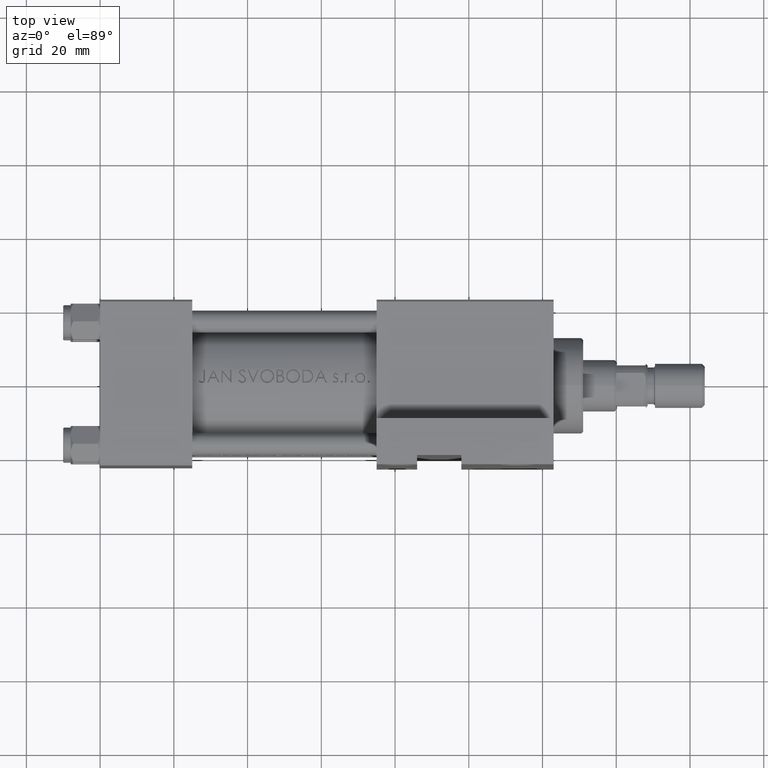
[diagram: clean part render]
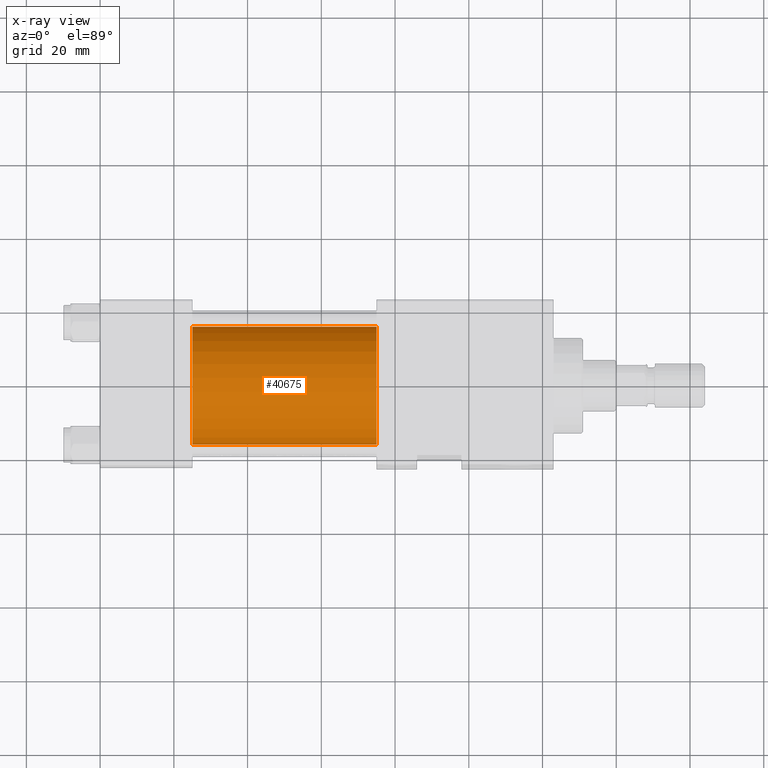
[diagram: x-ray — body ghosted, one internal face saturated and labeled with its STEP entity id]
A machine part, top view, then the same camera in x-ray: the body is ghosted and one INTERNAL B-rep face — a face not visible from any outside direction — is saturated and labeled: STEP entity #40675.
In plain terms, the highlighted cylindrical surface (partial cylindrical patch) has radius 16 mm, axis along (-1, -0, 0).
Its self-contained STEP definition (entity closure, byte-faithful):
#438 = DIRECTION ( 'NONE',  ( -1.000000000000000000, -0.000000000000000000, -0.000000000000000000 ) ) ;
#1616 = CIRCLE ( 'NONE', #7062, 16.00000000000000000 ) ;
#2234 = CARTESIAN_POINT ( 'NONE',  ( 75.00000000000001421, 2.020667218593132311E-15, -16.49999999999999645 ) ) ;
#2476 = LINE ( 'NONE', #2234, #41944 ) ;
#5056 = DIRECTION ( 'NONE',  ( 1.000000000000000000, 0.000000000000000000, 0.000000000000000000 ) ) ;
#6210 = ORIENTED_EDGE ( 'NONE', *, *, #30236, .F. ) ;
#6371 = DIRECTION ( 'NONE',  ( -1.000000000000000000, -0.000000000000000000, -0.000000000000000000 ) ) ;
#7062 = AXIS2_PLACEMENT_3D ( 'NONE', #34774, #5056, #35012 ) ;
#8647 = CARTESIAN_POINT ( 'NONE',  ( 25.00000000000000000, 6.123233995736727825E-17, 15.50000000000000355 ) ) ;
#9645 = EDGE_LOOP ( 'NONE', ( #46060, #39604, #39131, #6210 ) ) ;
#11266 = DIRECTION ( 'NONE',  ( -1.000000000000000000, -0.000000000000000000, -0.000000000000000000 ) ) ;
#12733 = CARTESIAN_POINT ( 'NONE',  ( 75.00000000000001421, 2.020667218593132311E-15, -16.49999999999999645 ) ) ;
#12747 = VECTOR ( 'NONE', #11266, 1000.000000000000000 ) ;
#12957 = CARTESIAN_POINT ( 'NONE',  ( 25.00000000000000000, 6.123233995736727825E-17, -0.4999999999999970024 ) ) ;
#15148 = EDGE_CURVE ( 'NONE', #33177, #32072, #2476, .T. ) ;
#15170 = EDGE_CURVE ( 'NONE', #32003, #32072, #40414, .T. ) ;
#15592 = VERTEX_POINT ( 'NONE', #27664 ) ;
#17326 = DIRECTION ( 'NONE',  ( 1.000000000000000000, 0.000000000000000000, 0.000000000000000000 ) ) ;
#17817 = AXIS2_PLACEMENT_3D ( 'NONE', #12957, #17326, #42687 ) ;
#18710 = EDGE_CURVE ( 'NONE', #15592, #33177, #1616, .T. ) ;
#20145 = CARTESIAN_POINT ( 'NONE',  ( 75.00000000000001421, 6.123233995736727825E-17, -0.4999999999999970024 ) ) ;
#21750 = LINE ( 'NONE', #22238, #12747 ) ;
#22238 = CARTESIAN_POINT ( 'NONE',  ( 75.00000000000001421, 6.123233995736727825E-17, 15.50000000000000355 ) ) ;
#23318 = FACE_OUTER_BOUND ( 'NONE', #9645, .T. ) ;
#25609 = CARTESIAN_POINT ( 'NONE',  ( 25.00000000000000000, 2.020667218593132311E-15, -16.49999999999999645 ) ) ;
#27664 = CARTESIAN_POINT ( 'NONE',  ( 75.00000000000001421, 6.123233995736727825E-17, 15.50000000000000355 ) ) ;
#30236 = EDGE_CURVE ( 'NONE', #15592, #32003, #21750, .T. ) ;
#30866 = DIRECTION ( 'NONE',  ( 0.000000000000000000, 0.000000000000000000, 1.000000000000000000 ) ) ;
#32003 = VERTEX_POINT ( 'NONE', #8647 ) ;
#32072 = VERTEX_POINT ( 'NONE', #25609 ) ;
#33177 = VERTEX_POINT ( 'NONE', #12733 ) ;
#34774 = CARTESIAN_POINT ( 'NONE',  ( 75.00000000000001421, 6.123233995736727825E-17, -0.4999999999999970024 ) ) ;
#35012 = DIRECTION ( 'NONE',  ( 0.000000000000000000, 0.000000000000000000, -1.000000000000000000 ) ) ;
#38190 = CYLINDRICAL_SURFACE ( 'NONE', #41263, 16.00000000000000000 ) ;
#39131 = ORIENTED_EDGE ( 'NONE', *, *, #15170, .F. ) ;
#39604 = ORIENTED_EDGE ( 'NONE', *, *, #15148, .T. ) ;
#40414 = CIRCLE ( 'NONE', #17817, 16.00000000000000000 ) ;
#40675 = ADVANCED_FACE ( 'NONE', ( #23318 ), #38190, .F. ) ;
#41263 = AXIS2_PLACEMENT_3D ( 'NONE', #20145, #438, #30866 ) ;
#41944 = VECTOR ( 'NONE', #6371, 1000.000000000000000 ) ;
#42687 = DIRECTION ( 'NONE',  ( 0.000000000000000000, 0.000000000000000000, -1.000000000000000000 ) ) ;
#46060 = ORIENTED_EDGE ( 'NONE', *, *, #18710, .T. ) ;